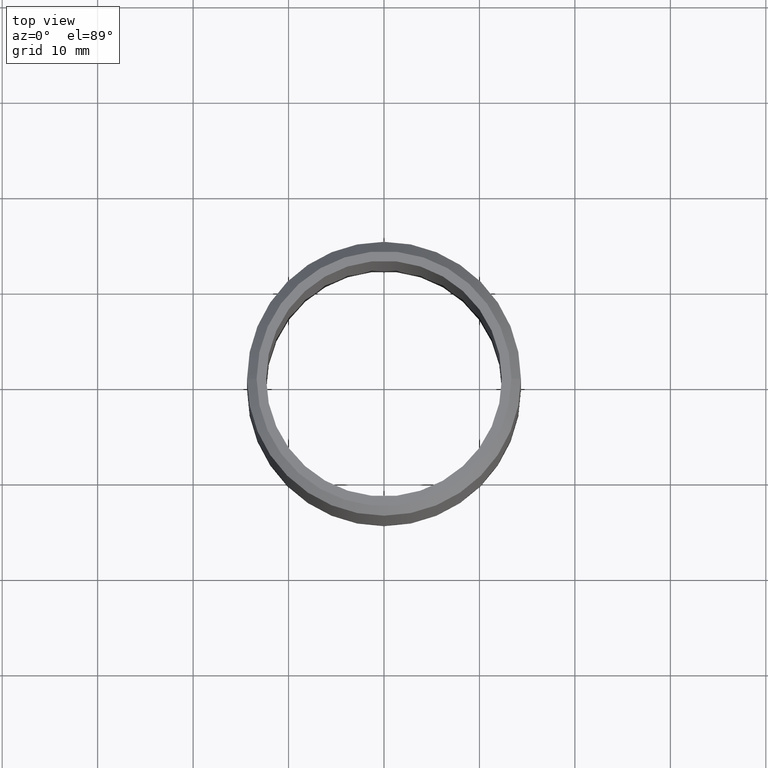
[diagram: clean part render]
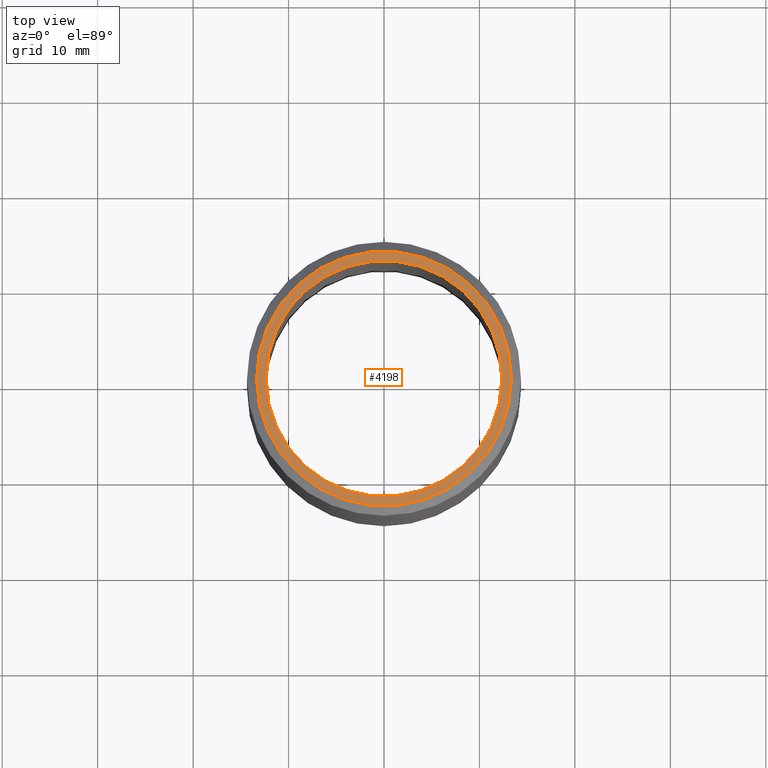
[diagram: same view with one face highlighted and labeled with its STEP entity id]
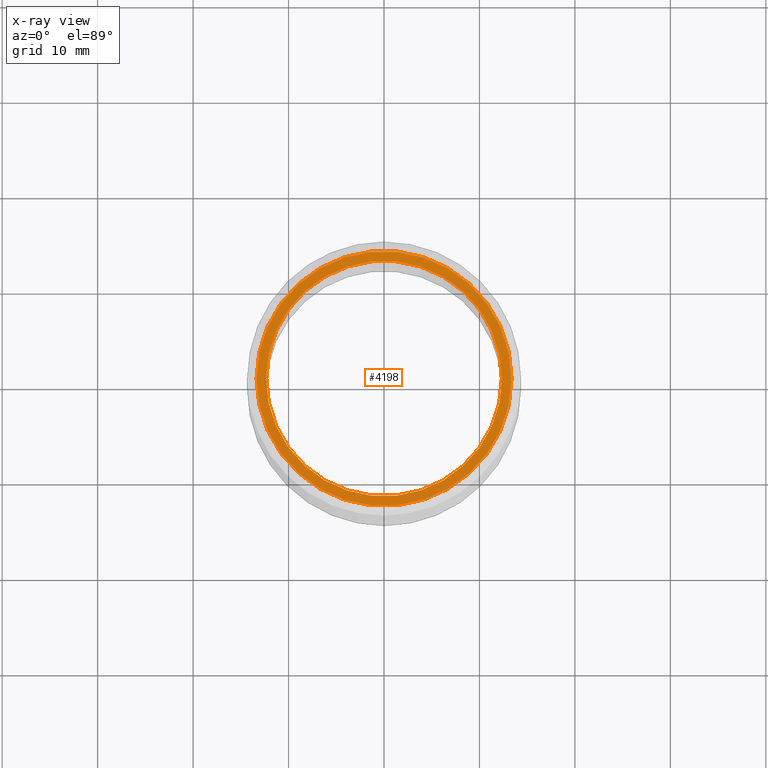
[diagram: x-ray of the same camera — body ghosted, the highlighted face saturated]
A machine part, top view. The second image highlights one B-rep face of the part: STEP entity #4198.
The next image is the same camera in x-ray: the body ghosted, the highlighted face saturated — about 0% of this face is hidden behind the body in this view.
In plain terms, the highlighted planar face has unit normal (0, 0, 1).
Its self-contained STEP definition (entity closure, byte-faithful):
#330 = PLANE ( 'NONE',  #8109 ) ;
#859 = CIRCLE ( 'NONE', #6998, 12.35000000000000100 ) ;
#1003 = ORIENTED_EDGE ( 'NONE', *, *, #8334, .T. ) ;
#1037 = VERTEX_POINT ( 'NONE', #2083 ) ;
#1088 = CARTESIAN_POINT ( 'NONE',  ( 13.35000000000000000, 1.696135816819084400E-015, 32.50000000000000000 ) ) ;
#1151 = VERTEX_POINT ( 'NONE', #1088 ) ;
#1175 = DIRECTION ( 'NONE',  ( 0.0000000000000000000, 0.0000000000000000000, 1.000000000000000000 ) ) ;
#2083 = CARTESIAN_POINT ( 'NONE',  ( 12.35000000000000100, 1.512438796946981500E-015, 32.50000000000000000 ) ) ;
#2549 = AXIS2_PLACEMENT_3D ( 'NONE', #9857, #8768, #11971 ) ;
#2718 = CIRCLE ( 'NONE', #9297, 13.35000000000000000 ) ;
#2740 = DIRECTION ( 'NONE',  ( 0.0000000000000000000, 0.0000000000000000000, 1.000000000000000000 ) ) ;
#3075 = EDGE_CURVE ( 'NONE', #3302, #1151, #13865, .T. ) ;
#3101 = FACE_BOUND ( 'NONE', #7441, .T. ) ;
#3302 = VERTEX_POINT ( 'NONE', #10549 ) ;
#4198 = ADVANCED_FACE ( 'NONE', ( #12818, #3101 ), #330, .T. ) ;
#4352 = DIRECTION ( 'NONE',  ( 0.0000000000000000000, 0.0000000000000000000, 1.000000000000000000 ) ) ;
#4460 = CARTESIAN_POINT ( 'NONE',  ( 0.0000000000000000000, 0.0000000000000000000, 32.50000000000000000 ) ) ;
#5463 = ORIENTED_EDGE ( 'NONE', *, *, #5640, .F. ) ;
#5475 = VERTEX_POINT ( 'NONE', #12949 ) ;
#5640 = EDGE_CURVE ( 'NONE', #1037, #5475, #859, .T. ) ;
#6716 = CARTESIAN_POINT ( 'NONE',  ( 0.0000000000000000000, 0.0000000000000000000, 32.50000000000000000 ) ) ;
#6998 = AXIS2_PLACEMENT_3D ( 'NONE', #6716, #1175, #10898 ) ;
#7004 = DIRECTION ( 'NONE',  ( 1.000000000000000000, 0.0000000000000000000, 0.0000000000000000000 ) ) ;
#7441 = EDGE_LOOP ( 'NONE', ( #12876, #5463 ) ) ;
#8109 = AXIS2_PLACEMENT_3D ( 'NONE', #10103, #10986, #11180 ) ;
#8149 = EDGE_CURVE ( 'NONE', #5475, #1037, #9062, .T. ) ;
#8334 = EDGE_CURVE ( 'NONE', #1151, #3302, #2718, .T. ) ;
#8768 = DIRECTION ( 'NONE',  ( 0.0000000000000000000, 0.0000000000000000000, 1.000000000000000000 ) ) ;
#9062 = CIRCLE ( 'NONE', #13174, 12.35000000000000100 ) ;
#9297 = AXIS2_PLACEMENT_3D ( 'NONE', #10323, #2740, #7004 ) ;
#9846 = DIRECTION ( 'NONE',  ( 1.000000000000000000, 0.0000000000000000000, 0.0000000000000000000 ) ) ;
#9857 = CARTESIAN_POINT ( 'NONE',  ( 0.0000000000000000000, 0.0000000000000000000, 32.50000000000000000 ) ) ;
#10103 = CARTESIAN_POINT ( 'NONE',  ( 0.0000000000000000000, 0.0000000000000000000, 32.50000000000000000 ) ) ;
#10323 = CARTESIAN_POINT ( 'NONE',  ( 0.0000000000000000000, 0.0000000000000000000, 32.50000000000000000 ) ) ;
#10549 = CARTESIAN_POINT ( 'NONE',  ( -13.35000000000000000, 0.0000000000000000000, 32.50000000000000000 ) ) ;
#10898 = DIRECTION ( 'NONE',  ( 1.000000000000000000, 0.0000000000000000000, 0.0000000000000000000 ) ) ;
#10986 = DIRECTION ( 'NONE',  ( 0.0000000000000000000, 0.0000000000000000000, 1.000000000000000000 ) ) ;
#11180 = DIRECTION ( 'NONE',  ( 1.000000000000000000, 0.0000000000000000000, -0.0000000000000000000 ) ) ;
#11858 = ORIENTED_EDGE ( 'NONE', *, *, #3075, .T. ) ;
#11971 = DIRECTION ( 'NONE',  ( 1.000000000000000000, 0.0000000000000000000, 0.0000000000000000000 ) ) ;
#12818 = FACE_OUTER_BOUND ( 'NONE', #14029, .T. ) ;
#12876 = ORIENTED_EDGE ( 'NONE', *, *, #8149, .F. ) ;
#12949 = CARTESIAN_POINT ( 'NONE',  ( -12.35000000000000100, 0.0000000000000000000, 32.50000000000000000 ) ) ;
#13174 = AXIS2_PLACEMENT_3D ( 'NONE', #4460, #4352, #9846 ) ;
#13865 = CIRCLE ( 'NONE', #2549, 13.35000000000000000 ) ;
#14029 = EDGE_LOOP ( 'NONE', ( #11858, #1003 ) ) ;